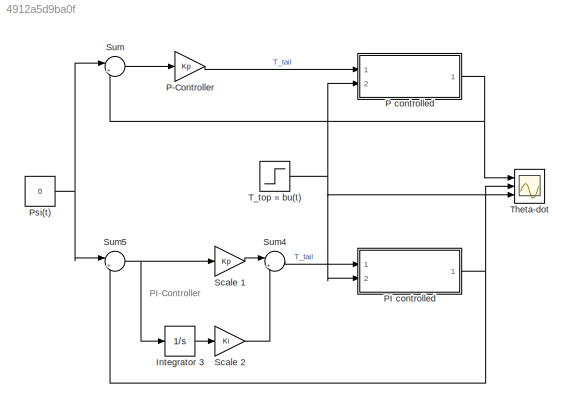
MODEL slx_4912a5d9ba0f
KIND model
WORKSPACE source: MAT-file member
WORKSPACE a = 5
WORKSPACE Ki = 12000
BLOCK [Integrator] Integrator 3
  Ports = [1, 1]
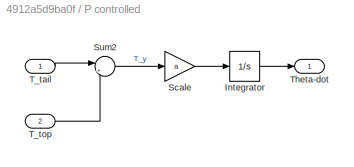
BLOCK [SubSystem] P controlled
  Ports = [2, 1]
  RequestExecContextInheritance = off
BLOCK [Integrator] P controlled/Integrator
  Ports = [1, 1]
BLOCK [Gain] P controlled/Scale
  Gain = a
  OutDataTypeStr = Inherit: Inherit via internal rule
  ParamDataTypeStr = Inherit: Inherit via internal rule
  SaturateOnIntegerOverflow = off
BLOCK [Sum] P controlled/Sum2
  IconShape = round
  InputSameDT = off
  Inputs = |++
  OutDataTypeStr = Inherit: Inherit via internal rule
  Ports = [2, 1]
  SaturateOnIntegerOverflow = off
BLOCK [Inport] P controlled/T_tail
  IconDisplay = Port number
BLOCK [Inport] P controlled/T_top
  IconDisplay = Port number
  Port = 2
BLOCK [Outport] P controlled/Theta-dot
  IconDisplay = Port number
BLOCK [Gain] P-Controller
  Gain = Kp
  OutDataTypeStr = Inherit: Inherit via internal rule
  ParamDataTypeStr = Inherit: Inherit via internal rule
  SaturateOnIntegerOverflow = off
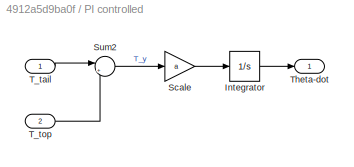
BLOCK [SubSystem] PI controlled
  Ports = [2, 1]
  RequestExecContextInheritance = off
BLOCK [Integrator] PI controlled/Integrator
  Ports = [1, 1]
BLOCK [Gain] PI controlled/Scale
  Gain = a
  OutDataTypeStr = Inherit: Inherit via internal rule
  ParamDataTypeStr = Inherit: Inherit via internal rule
  SaturateOnIntegerOverflow = off
BLOCK [Sum] PI controlled/Sum2
  IconShape = round
  InputSameDT = off
  Inputs = |++
  OutDataTypeStr = Inherit: Inherit via internal rule
  Ports = [2, 1]
  SaturateOnIntegerOverflow = off
BLOCK [Inport] PI controlled/T_tail
  IconDisplay = Port number
BLOCK [Inport] PI controlled/T_top
  IconDisplay = Port number
  Port = 2
BLOCK [Outport] PI controlled/Theta-dot
  IconDisplay = Port number
BLOCK [Constant] Psi(t)
  Value = 0
BLOCK [Gain] Scale 1
  Gain = Kp
  OutDataTypeStr = Inherit: Inherit via internal rule
  ParamDataTypeStr = Inherit: Inherit via internal rule
  SaturateOnIntegerOverflow = off
BLOCK [Gain] Scale 2
  Gain = Ki
  OutDataTypeStr = Inherit: Inherit via internal rule
  ParamDataTypeStr = Inherit: Inherit via internal rule
  SaturateOnIntegerOverflow = off
BLOCK [Sum] Sum
  IconShape = round
  InputSameDT = off
  Inputs = |+-
  OutDataTypeStr = Inherit: Inherit via internal rule
  Ports = [2, 1]
  SaturateOnIntegerOverflow = off
BLOCK [Sum] Sum4
  IconShape = round
  InputSameDT = off
  Inputs = |++
  OutDataTypeStr = Inherit: Inherit via internal rule
  Ports = [2, 1]
  SaturateOnIntegerOverflow = off
BLOCK [Sum] Sum5
  IconShape = round
  InputSameDT = off
  Inputs = |+-
  OutDataTypeStr = Inherit: Inherit via internal rule
  Ports = [2, 1]
  SaturateOnIntegerOverflow = off
BLOCK [Step] T_top = bu(t)
  After = T_top
  SampleTime = 0
  Time = 0.1
BLOCK [Scope] Theta-dot
  DataFormat = StructureWithTime
  Floating = off
  LegendLocations = 0.63664     0.86747     0.24729    0.024888\n0.62105     0.57388      0.2538    0.024888\n0.63122     0.28157     0.25813    0.024888
  NumInputPorts = 3
  Ports = [3]
  SampleTime = 0
  ShowLegends = on
  YMax = 0.2~0.2~5
  YMin = -0.2~-0.2~-5
ANNOTATION (root): PI-Controller
LINE Integrator 3:1 -> Scale 2:1
LINE P controlled/Integrator:1 -> P controlled/Theta-dot:1
LINE P controlled/Scale:1 -> P controlled/Integrator:1
LINE P controlled/Sum2:1 -> P controlled/Scale:1
LINE P controlled/T_tail:1 -> P controlled/Sum2:1
LINE P controlled/T_top:1 -> P controlled/Sum2:2
NET P controlled:1 -> Sum:2, Theta-dot:1
LINE P-Controller:1 -> P controlled:1
LINE PI controlled/Integrator:1 -> PI controlled/Theta-dot:1
LINE PI controlled/Scale:1 -> PI controlled/Integrator:1
LINE PI controlled/Sum2:1 -> PI controlled/Scale:1
LINE PI controlled/T_tail:1 -> PI controlled/Sum2:1
LINE PI controlled/T_top:1 -> PI controlled/Sum2:2
NET PI controlled:1 -> Sum5:2, Theta-dot:2
NET Psi(t):1 -> Sum5:1, Sum:1
LINE Scale 1:1 -> Sum4:1
LINE Scale 2:1 -> Sum4:2
LINE Sum4:1 -> PI controlled:1
NET Sum5:1 -> Integrator 3:1, Scale 1:1
LINE Sum:1 -> P-Controller:1
NET T_top = bu(t):1 -> P controlled:2, PI controlled:2, Theta-dot:3
note: NET lines group one-source signal fan-out (src -> all destinations, sorted); 1:1 wires keep LINE
